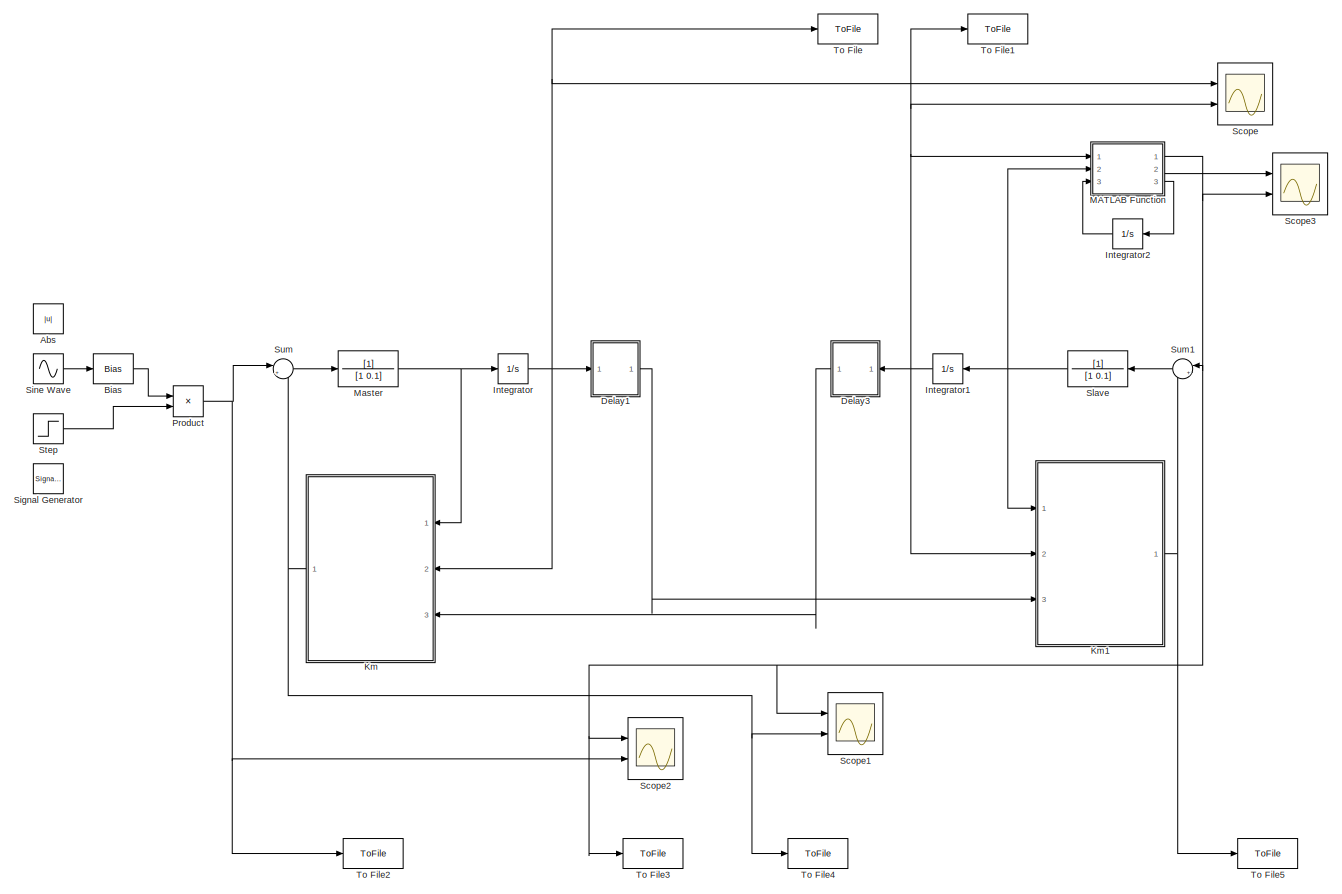
[diagram: root canvas - part 1/1, most of the canvas]
MODEL slx_c2e12b96f680
KIND model
CONFIG AbsTol = auto
CONFIG FixedStep = auto
CONFIG MaxStep = auto
CONFIG MinStep = auto
CONFIG RelTol = 1e-3
CONFIG SampleTimeConstraint = Unconstrained
CONFIG Solver = VariableStepAuto
CONFIG SolverMode = Auto
CONFIG SolverName = VariableStepAuto
CONFIG StartTime = 0.0
CONFIG StopTime = 100
BLOCK [Abs] Abs
  SaturateOnIntegerOverflow = off
BLOCK [Bias] Bias
  Bias = 0.5
  SaturateOnIntegerOverflow = off
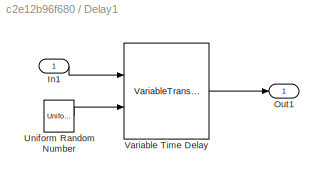
BLOCK [SubSystem] Delay1
  Ports = [1, 1]
  RequestExecContextInheritance = off
  Variant = off
BLOCK [Inport] Delay1/In1
  IconDisplay = Port number
BLOCK [Outport] Delay1/Out1
  IconDisplay = Port number
BLOCK [UniformRandomNumber] Delay1/Uniform Random Number
  Maximum = Dm
  Minimum = 0
  SampleTime = 0.1
BLOCK [VariableTransportDelay] Delay1/Variable Time Delay
  MaximumDelay = Dm
  Ports = [2, 1]
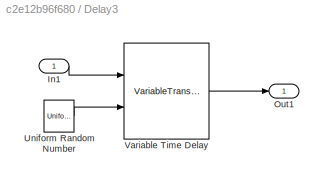
BLOCK [SubSystem] Delay3
  Ports = [1, 1]
  RequestExecContextInheritance = off
  Variant = off
BLOCK [Inport] Delay3/In1
  IconDisplay = Port number
BLOCK [Outport] Delay3/Out1
  IconDisplay = Port number
BLOCK [UniformRandomNumber] Delay3/Uniform Random Number
  Maximum = Ds
  Minimum = 0
  SampleTime = 0.1
BLOCK [VariableTransportDelay] Delay3/Variable Time Delay
  MaximumDelay = Ds
  Ports = [2, 1]
BLOCK [Integrator] Integrator
  Ports = [1, 1]
BLOCK [Integrator] Integrator1
  Ports = [1, 1]
BLOCK [Integrator] Integrator2
  Ports = [1, 1]
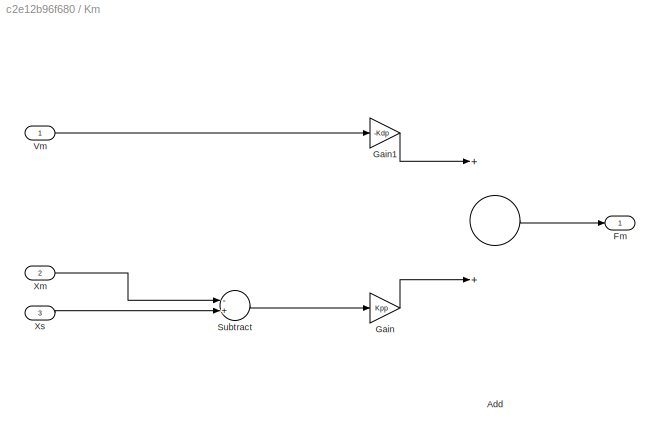
BLOCK [SubSystem] Km
  Ports = [3, 1]
  RequestExecContextInheritance = off
  Variant = off
BLOCK [Sum] Km/Add
  InputSameDT = off
  OutDataTypeStr = Inherit: Inherit via internal rule
  Ports = [2, 1]
  SaturateOnIntegerOverflow = off
BLOCK [Outport] Km/Fm
  IconDisplay = Port number
BLOCK [Gain] Km/Gain
  Gain = Kpp
  OutDataTypeStr = Inherit: Inherit via internal rule
  ParamDataTypeStr = Inherit: Inherit via internal rule
  SaturateOnIntegerOverflow = off
BLOCK [Gain] Km/Gain1
  Gain = -Kdp
  OutDataTypeStr = Inherit: Inherit via internal rule
  ParamDataTypeStr = Inherit: Inherit via internal rule
  SaturateOnIntegerOverflow = off
BLOCK [Sum] Km/Subtract
  InputSameDT = off
  Inputs = -+
  OutDataTypeStr = Inherit: Inherit via internal rule
  Ports = [2, 1]
  SaturateOnIntegerOverflow = off
BLOCK [Inport] Km/Vm
  IconDisplay = Port number
BLOCK [Inport] Km/Xm
  IconDisplay = Port number
  Port = 2
BLOCK [Inport] Km/Xs
  IconDisplay = Port number
  Port = 3
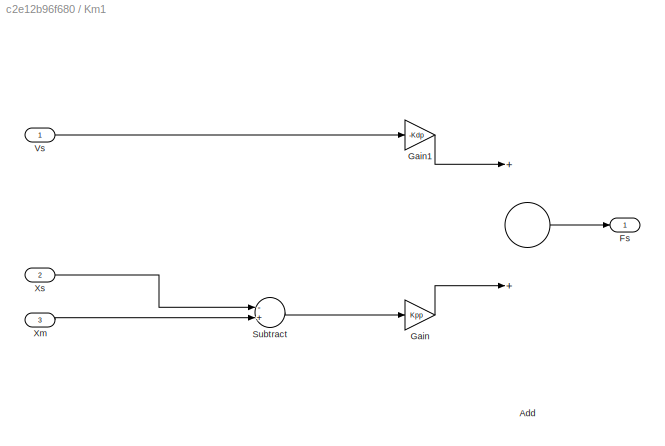
BLOCK [SubSystem] Km1
  Ports = [3, 1]
  RequestExecContextInheritance = off
  Variant = off
BLOCK [Sum] Km1/Add
  InputSameDT = off
  OutDataTypeStr = Inherit: Inherit via internal rule
  Ports = [2, 1]
  SaturateOnIntegerOverflow = off
BLOCK [Outport] Km1/Fs
  IconDisplay = Port number
BLOCK [Gain] Km1/Gain
  Gain = Kpp
  OutDataTypeStr = Inherit: Inherit via internal rule
  ParamDataTypeStr = Inherit: Inherit via internal rule
  SaturateOnIntegerOverflow = off
BLOCK [Gain] Km1/Gain1
  Gain = -Kdp
  OutDataTypeStr = Inherit: Inherit via internal rule
  ParamDataTypeStr = Inherit: Inherit via internal rule
  SaturateOnIntegerOverflow = off
BLOCK [Sum] Km1/Subtract
  InputSameDT = off
  Inputs = -+
  OutDataTypeStr = Inherit: Inherit via internal rule
  Ports = [2, 1]
  SaturateOnIntegerOverflow = off
BLOCK [Inport] Km1/Vs
  IconDisplay = Port number
BLOCK [Inport] Km1/Xm
  IconDisplay = Port number
  Port = 3
BLOCK [Inport] Km1/Xs
  IconDisplay = Port number
  Port = 2
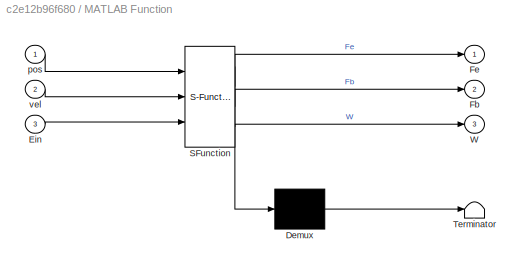
BLOCK [SubSystem] MATLAB Function
  ErrorFcn = Stateflow.Translate.translate
  PermitHierarchicalResolution = ExplicitOnly
  Ports = [3, 3]
  RequestExecContextInheritance = off
  SFBlockType = MATLAB Function
  TreatAsAtomicUnit = on
  Variant = off
BLOCK [Demux] MATLAB Function/ Demux 
  Outputs = 1
  Ports = [1, 1]
BLOCK [S-Function] MATLAB Function/ SFunction 
  EnableBusSupport = on
  FunctionName = sf_sfun
  PortCounts = [3 4]
  Ports = [3, 4]
  SFunctionDeploymentMode = off
  Tag = Stateflow S-Function P_like 2
BLOCK [Terminator] MATLAB Function/ Terminator 
BLOCK [Inport] MATLAB Function/Ein
  IconDisplay = Port number
  Port = 3
BLOCK [Outport] MATLAB Function/Fb
  IconDisplay = Port number
  Port = 2
BLOCK [Outport] MATLAB Function/Fe
  IconDisplay = Port number
BLOCK [Outport] MATLAB Function/W
  IconDisplay = Port number
  Port = 3
BLOCK [Inport] MATLAB Function/pos
  IconDisplay = Port number
BLOCK [Inport] MATLAB Function/vel
  IconDisplay = Port number
  Port = 2
BLOCK [TransferFcn] Master
  Denominator = [1 0.1]
BLOCK [Product] Product
  InputSameDT = off
  OutDataTypeStr = Inherit: Inherit via internal rule
  Ports = [2, 1]
  RndMeth = Floor
  SaturateOnIntegerOverflow = off
BLOCK [Scope] Scope
  NumInputPorts = 2
  Ports = [2]
  ScopeSpecificationString = Simulink.scopes.TimeScopeBlockCfg('CurrentConfiguration', extmgr.ConfigurationSet(extmgr.Configuration('Core','General UI',true),extmgr.Configuration('Core','Source UI',true),extmgr.Configuration('Sources','WiredSimulink',true,'DataLoggingVariableName','ScopeData2'),extmgr.Configuration('Visuals','Time Domain',true,'SerializedDisplays',{struct('MinYLimReal','-0.0811','MaxYLimReal','0.72989','YLabe...<+1452ch>
BLOCK [Scope] Scope1
  NumInputPorts = 2
  Ports = [2]
  ScopeSpecificationString = Simulink.scopes.TimeScopeBlockCfg('CurrentConfiguration', extmgr.ConfigurationSet(extmgr.Configuration('Core','General UI',true),extmgr.Configuration('Core','Source UI',true),extmgr.Configuration('Sources','WiredSimulink',true,'DataLoggingVariableName','ScopeData3'),extmgr.Configuration('Visuals','Time Domain',true,'SerializedDisplays',{struct('MinYLimReal','-5.8383','MaxYLimReal','1.21121','YLabe...<+1503ch>
BLOCK [Scope] Scope2
  NumInputPorts = 2
  Ports = [2]
  ScopeSpecificationString = Simulink.scopes.TimeScopeBlockCfg('CurrentConfiguration', extmgr.ConfigurationSet(extmgr.Configuration('Core','General UI',true),extmgr.Configuration('Core','Source UI',true),extmgr.Configuration('Sources','WiredSimulink',true,'DataLoggingVariableName','ScopeData4'),extmgr.Configuration('Visuals','Time Domain',true,'SerializedDisplays',{struct('MinYLimReal','-6.72264','MaxYLimReal','2.41363','YLab...<+1414ch>
BLOCK [Scope] Scope3
  NumInputPorts = 2
  Ports = [2]
  ScopeSpecificationString = C++SS(StrPVP('SaveName','ScopeData'))
BLOCK [SignalGenerator] Signal Generator
  Amplitude = -1
  Frequency = 0.05*pi
  Ports = [0, 1]
  Units = rad/sec
  WaveForm = square
BLOCK [Sin] Sine Wave
  Frequency = pi/20
  Ports = [0, 1]
  SampleTime = 0
BLOCK [TransferFcn] Slave
  Denominator = [1 0.1]
BLOCK [Step] Step
  After = 0
  Before = 1
  SampleTime = 0
  Time = 100
BLOCK [Sum] Sum
  IconShape = round
  InputSameDT = off
  Inputs = |++
  OutDataTypeStr = Inherit: Inherit via internal rule
  Ports = [2, 1]
  SaturateOnIntegerOverflow = off
BLOCK [Sum] Sum1
  IconShape = round
  InputSameDT = off
  Inputs = |++
  OutDataTypeStr = Inherit: Inherit via internal rule
  Ports = [2, 1]
  SaturateOnIntegerOverflow = off
BLOCK [ToFile] To File
  Filename = Qm_p.mat
  MatrixName = Qm_p
  Ports = [1]
  SaveFormat = Timeseries
BLOCK [ToFile] To File1
  Filename = Qs_p.mat
  MatrixName = Qs_p
  Ports = [1]
  SaveFormat = Timeseries
BLOCK [ToFile] To File2
  Filename = Fh_p.mat
  MatrixName = Fh_p
  Ports = [1]
  SaveFormat = Timeseries
BLOCK [ToFile] To File3
  Filename = Fe_p.mat
  MatrixName = Fe_p
  Ports = [1]
  SaveFormat = Timeseries
BLOCK [ToFile] To File4
  Filename = Fm_p.mat
  MatrixName = Fm_p
  Ports = [1]
  SaveFormat = Timeseries
BLOCK [ToFile] To File5
  Filename = Fs_p.mat
  MatrixName = Fs_p
  Ports = [1]
  SaveFormat = Timeseries
LINE Bias:1 -> Product:1
LINE Delay1/In1:1 -> Delay1/Variable Time Delay:1
LINE Delay1/Uniform Random Number:1 -> Delay1/Variable Time Delay:2
LINE Delay1/Variable Time Delay:1 -> Delay1/Out1:1
LINE Delay1:1 -> Km1:3
LINE Delay3/In1:1 -> Delay3/Variable Time Delay:1
LINE Delay3/Uniform Random Number:1 -> Delay3/Variable Time Delay:2
LINE Delay3/Variable Time Delay:1 -> Delay3/Out1:1
LINE Delay3:1 -> Km:3
NET Integrator1:1 -> Delay3:1, Km1:2, MATLAB Function:1, Scope:2, To File1:1
LINE Integrator2:1 -> MATLAB Function:3
NET Integrator:1 -> Delay1:1, Km:2, Scope:1, To File:1
LINE Km/Add:1 -> Km/Fm:1
LINE Km/Gain1:1 -> Km/Add:1
LINE Km/Gain:1 -> Km/Add:2
LINE Km/Subtract:1 -> Km/Gain:1
LINE Km/Vm:1 -> Km/Gain1:1
LINE Km/Xm:1 -> Km/Subtract:1
LINE Km/Xs:1 -> Km/Subtract:2
LINE Km1/Add:1 -> Km1/Fs:1
LINE Km1/Gain1:1 -> Km1/Add:1
LINE Km1/Gain:1 -> Km1/Add:2
LINE Km1/Subtract:1 -> Km1/Gain:1
LINE Km1/Vs:1 -> Km1/Gain1:1
LINE Km1/Xm:1 -> Km1/Subtract:2
LINE Km1/Xs:1 -> Km1/Subtract:1
NET Km1:1 -> Sum1:2, To File5:1
NET Km:1 -> Scope1:2, Sum:2, To File4:1
NET MATLAB Function:1 -> Scope1:1, Scope2:1, Scope3:2, Sum1:1, To File3:1
LINE MATLAB Function:2 -> Scope3:1
LINE MATLAB Function:3 -> Integrator2:1
NET Master:1 -> Integrator:1, Km:1
NET Product:1 -> Scope2:2, Sum:1, To File2:1
LINE Sine Wave:1 -> Bias:1
NET Slave:1 -> Integrator1:1, Km1:1, MATLAB Function:2
LINE Step:1 -> Product:2
LINE Sum1:1 -> Slave:1
LINE Sum:1 -> Master:1
note: NET lines group one-source signal fan-out (src -> all destinations, sorted); 1:1 wires keep LINE
CHART MATLAB Function states=1 transitions=1
  STATE_LABEL 'eML_blk_kernel()'
  STATE_LABEL 'SCRIPT:\nfunction [Fe, Fb, W] = Envir(pos,vel,Ein)\n%#codegen\nkWall = 10000;\nbWall = 0;\nif pos>=0.5\n    Fk=-(pos-0.5)*kWall;\n    if Ein<=10\n        Fb=bWall*vel;\n    else\n        Fb=0;\n    end\n    Fe=Fk+Fb;\n    W=Fb*vel;\nelse\n    Fe=0;\n    Fb=0;\n    W=0;\nend'
